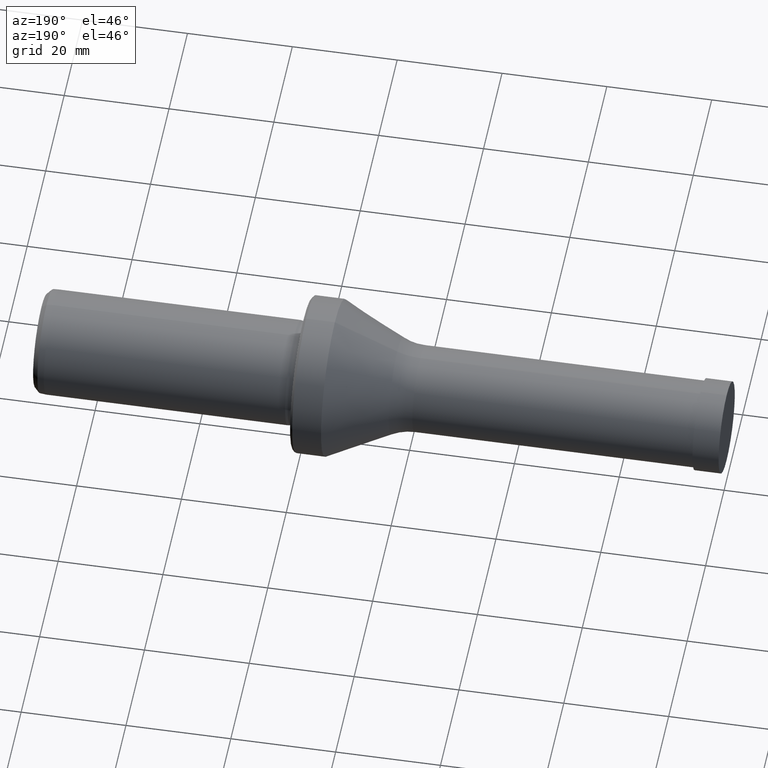
[diagram: clean part render]
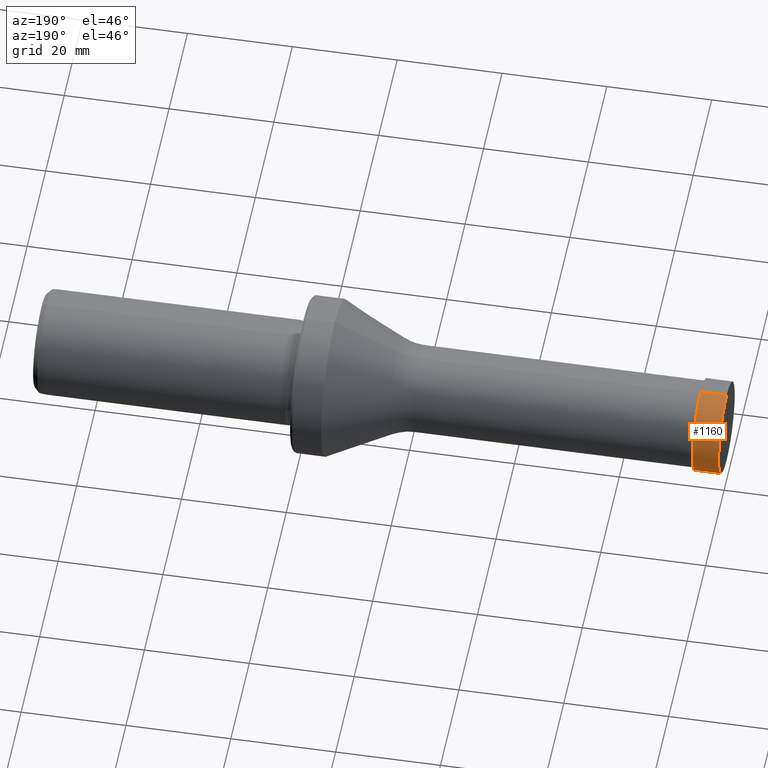
[diagram: same view with one face highlighted and labeled with its STEP entity id]
A machine part, auxiliary view. The second image highlights one B-rep face of the part: STEP entity #1160.
In plain terms, the highlighted cylindrical surface (partial cylindrical patch) has radius 8.75 mm, axis along (-1, 0, 0).
Its self-contained STEP definition (entity closure, byte-faithful):
#49 = DIRECTION ( 'NONE',  ( 0.0000000000000000000, 0.0000000000000000000, 1.000000000000000000 ) ) ;
#52 = AXIS2_PLACEMENT_3D ( 'NONE', #279, #872, #461 ) ;
#56 = DIRECTION ( 'NONE',  ( -1.000000000000000000, 0.0000000000000000000, 0.0000000000000000000 ) ) ;
#73 = AXIS2_PLACEMENT_3D ( 'NONE', #194, #56, #49 ) ;
#85 = DIRECTION ( 'NONE',  ( 0.0000000000000000000, 0.0000000000000000000, 1.000000000000000000 ) ) ;
#91 = VECTOR ( 'NONE', #841, 1000.000000000000000 ) ;
#113 = CARTESIAN_POINT ( 'NONE',  ( 4.500000000000000000, 0.0000000000000000000, 0.0000000000000000000 ) ) ;
#147 = DIRECTION ( 'NONE',  ( -1.000000000000000000, 0.0000000000000000000, 0.0000000000000000000 ) ) ;
#183 = AXIS2_PLACEMENT_3D ( 'NONE', #113, #147, #85 ) ;
#194 = CARTESIAN_POINT ( 'NONE',  ( -0.5000000000000002200, 0.0000000000000000000, 0.0000000000000000000 ) ) ;
#279 = CARTESIAN_POINT ( 'NONE',  ( 4.500000000000000000, 0.0000000000000000000, 0.0000000000000000000 ) ) ;
#283 = CARTESIAN_POINT ( 'NONE',  ( -0.5000000000000002200, 0.0000000000000000000, 8.750000000000001800 ) ) ;
#299 = CARTESIAN_POINT ( 'NONE',  ( -0.5000000000000002200, 1.071565949253934300E-015, -8.750000000000001800 ) ) ;
#365 = VERTEX_POINT ( 'NONE', #639 ) ;
#380 = LINE ( 'NONE', #905, #1176 ) ;
#461 = DIRECTION ( 'NONE',  ( 0.0000000000000000000, 0.0000000000000000000, 1.000000000000000000 ) ) ;
#468 = ORIENTED_EDGE ( 'NONE', *, *, #631, .F. ) ;
#532 = CARTESIAN_POINT ( 'NONE',  ( 4.500000000000000000, 1.071565949253934300E-015, -8.750000000000001800 ) ) ;
#573 = DIRECTION ( 'NONE',  ( -1.000000000000000000, 0.0000000000000000000, 0.0000000000000000000 ) ) ;
#605 = CARTESIAN_POINT ( 'NONE',  ( 4.500000000000000000, 1.071565949253934300E-015, -8.750000000000001800 ) ) ;
#608 = EDGE_CURVE ( 'NONE', #919, #891, #878, .T. ) ;
#612 = ORIENTED_EDGE ( 'NONE', *, *, #608, .T. ) ;
#631 = EDGE_CURVE ( 'NONE', #365, #964, #380, .T. ) ;
#639 = CARTESIAN_POINT ( 'NONE',  ( 4.500000000000000000, 0.0000000000000000000, 8.750000000000001800 ) ) ;
#653 = CIRCLE ( 'NONE', #52, 8.750000000000001800 ) ;
#841 = DIRECTION ( 'NONE',  ( -1.000000000000000000, 0.0000000000000000000, 0.0000000000000000000 ) ) ;
#848 = ORIENTED_EDGE ( 'NONE', *, *, #961, .F. ) ;
#872 = DIRECTION ( 'NONE',  ( -1.000000000000000000, 0.0000000000000000000, 0.0000000000000000000 ) ) ;
#878 = LINE ( 'NONE', #532, #91 ) ;
#891 = VERTEX_POINT ( 'NONE', #299 ) ;
#905 = CARTESIAN_POINT ( 'NONE',  ( 4.500000000000000000, 0.0000000000000000000, 8.750000000000001800 ) ) ;
#919 = VERTEX_POINT ( 'NONE', #605 ) ;
#940 = ORIENTED_EDGE ( 'NONE', *, *, #1063, .T. ) ;
#961 = EDGE_CURVE ( 'NONE', #964, #891, #990, .T. ) ;
#964 = VERTEX_POINT ( 'NONE', #283 ) ;
#990 = CIRCLE ( 'NONE', #73, 8.750000000000001800 ) ;
#1063 = EDGE_CURVE ( 'NONE', #365, #919, #653, .T. ) ;
#1070 = CYLINDRICAL_SURFACE ( 'NONE', #183, 8.750000000000001800 ) ;
#1143 = FACE_OUTER_BOUND ( 'NONE', #1172, .T. ) ;
#1160 = ADVANCED_FACE ( 'NONE', ( #1143 ), #1070, .T. ) ;
#1172 = EDGE_LOOP ( 'NONE', ( #940, #612, #848, #468 ) ) ;
#1176 = VECTOR ( 'NONE', #573, 1000.000000000000000 ) ;